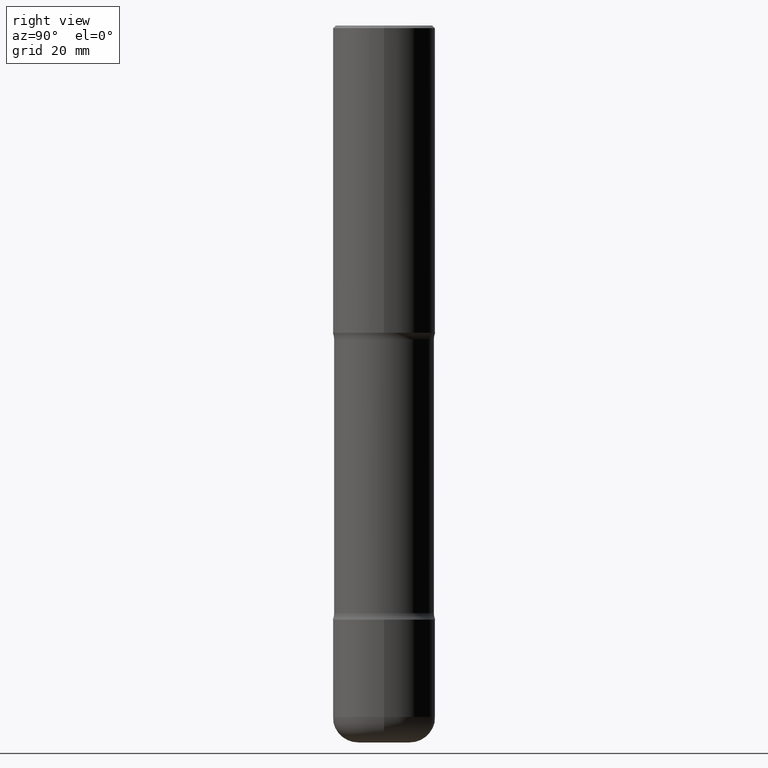
[diagram: clean part render]
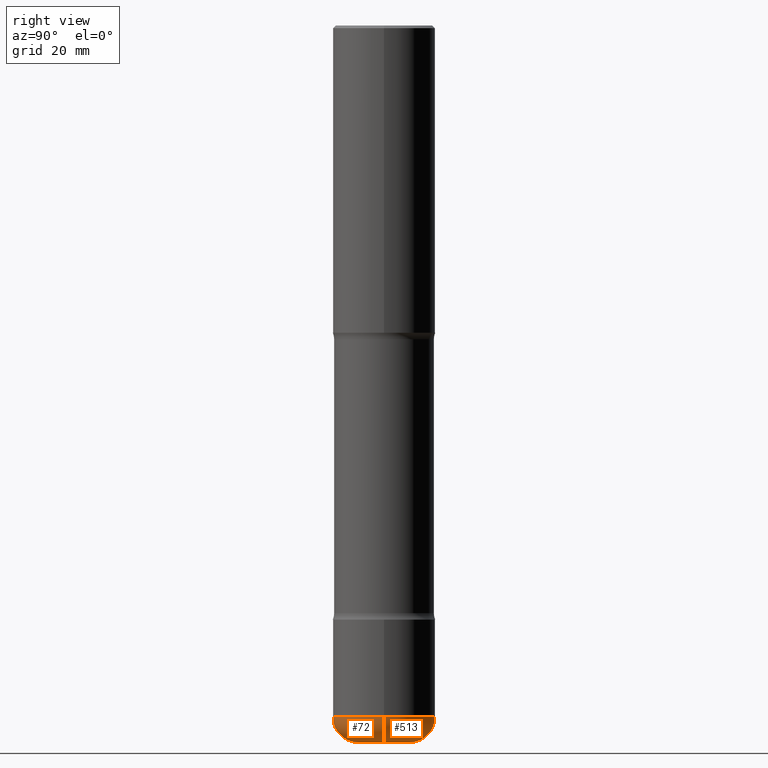
[diagram: same view with one multi-face feature highlighted, each face labeled with its STEP entity id]
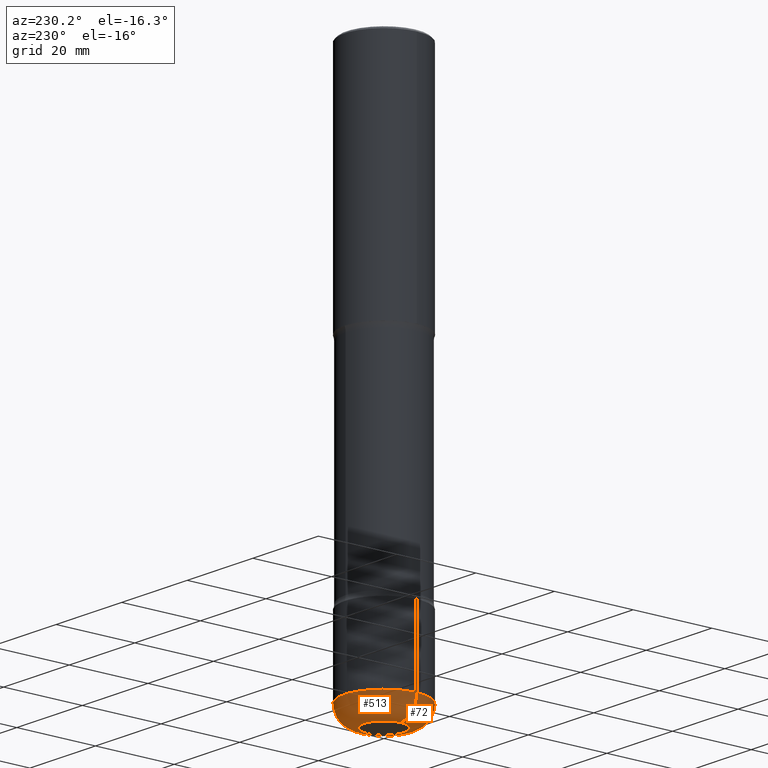
[diagram: same view with one multi-face feature highlighted, each face labeled with its STEP entity id]
A machine part, right view. The highlighted faces form ONE feature: a constant-radius fillet chain: 2 tangent blend faces with common blend radius 5.0013 mm. The faces share edges in the B-rep.
A second angle (auxiliary view) of the same feature is appended — it is thin or edge-on in the first view.
Their STEP definitions:
[1] entity #513 (Torus):
#1 = DIRECTION ( 'NONE',  ( 1.000000000000000000, -6.982962677686264344E-15, 4.883557194083112340E-29 ) ) ;
#3 = AXIS2_PLACEMENT_3D ( 'NONE', #47, #395, #1 ) ;
#14 = CARTESIAN_POINT ( 'NONE',  ( 0.1968000000000005578, -1.993112122278608958E-14, -5.314899999999998847 ) ) ;
#47 = CARTESIAN_POINT ( 'NONE',  ( 1.299742215799337779E-28, -1.855687416781742833E-14, -5.314899999999998847 ) ) ;
#92 = CIRCLE ( 'NONE', #272, 0.1968000000000005856 ) ;
#108 = DIRECTION ( 'NONE',  ( 1.000000000000000000, -6.982962677686266711E-15, 0.000000000000000000 ) ) ;
#117 = DIRECTION ( 'NONE',  ( -2.445468806185136597E-29, 3.491481338843145583E-15, 1.000000000000000000 ) ) ;
#128 = DIRECTION ( 'NONE',  ( 7.105427357601001859E-15, 1.000000000000000000, -3.491481338843145583E-15 ) ) ;
#147 = AXIS2_PLACEMENT_3D ( 'NONE', #14, #282, #532 ) ;
#157 = AXIS2_PLACEMENT_3D ( 'NONE', #490, #117, #108 ) ;
#160 = ORIENTED_EDGE ( 'NONE', *, *, #384, .T. ) ;
#172 = DIRECTION ( 'NONE',  ( -1.000000000000000000, 7.105427357601005014E-15, 0.000000000000000000 ) ) ;
#178 = VERTEX_POINT ( 'NONE', #234 ) ;
#204 = ORIENTED_EDGE ( 'NONE', *, *, #332, .F. ) ;
#206 = CIRCLE ( 'NONE', #147, 0.1969000000000002137 ) ;
#234 = CARTESIAN_POINT ( 'NONE',  ( 0.1968000000000005856, -2.061859389840430688E-14, -5.511799999999999145 ) ) ;
#246 = VERTEX_POINT ( 'NONE', #424 ) ;
#253 = EDGE_CURVE ( 'NONE', #178, #535, #206, .T. ) ;
#260 = TOROIDAL_SURFACE ( 'NONE', #3, 0.1968000000000005578, 0.1969000000000001860 ) ;
#263 = CIRCLE ( 'NONE', #359, 0.1969000000000002137 ) ;
#272 = AXIS2_PLACEMENT_3D ( 'NONE', #550, #388, #308 ) ;
#282 = DIRECTION ( 'NONE',  ( -6.982962677686266711E-15, -1.000000000000000000, 3.491481338843145583E-15 ) ) ;
#303 = ORIENTED_EDGE ( 'NONE', *, *, #406, .T. ) ;
#308 = DIRECTION ( 'NONE',  ( 1.000000000000000000, -6.982962677686261189E-15, 0.000000000000000000 ) ) ;
#332 = EDGE_CURVE ( 'NONE', #535, #246, #460, .T. ) ;
#359 = AXIS2_PLACEMENT_3D ( 'NONE', #432, #128, #172 ) ;
#384 = EDGE_CURVE ( 'NONE', #418, #246, #263, .T. ) ;
#388 = DIRECTION ( 'NONE',  ( -2.445468806185136597E-29, 3.491481338843145583E-15, 1.000000000000000000 ) ) ;
#395 = DIRECTION ( 'NONE',  ( -2.445468806185136597E-29, 3.491481338843145583E-15, 1.000000000000000000 ) ) ;
#406 = EDGE_CURVE ( 'NONE', #178, #418, #92, .T. ) ;
#418 = VERTEX_POINT ( 'NONE', #440 ) ;
#424 = CARTESIAN_POINT ( 'NONE',  ( -0.3937000000000007160, -1.575946741712991118E-14, -5.314899999999998847 ) ) ;
#432 = CARTESIAN_POINT ( 'NONE',  ( -0.1968000000000005578, -1.715852606384155055E-14, -5.314899999999998847 ) ) ;
#440 = CARTESIAN_POINT ( 'NONE',  ( -0.1968000000000005856, -1.680273307829483794E-14, -5.511799999999999145 ) ) ;
#460 = CIRCLE ( 'NONE', #157, 0.3937000000000006605 ) ;
#479 = FACE_OUTER_BOUND ( 'NONE', #488, .T. ) ;
#488 = EDGE_LOOP ( 'NONE', ( #303, #160, #204, #544 ) ) ;
#490 = CARTESIAN_POINT ( 'NONE',  ( 1.299742215799337779E-28, -1.855687416781742833E-14, -5.314899999999998847 ) ) ;
#491 = CARTESIAN_POINT ( 'NONE',  ( 0.3937000000000007160, -2.130606657402251786E-14, -5.314899999999998847 ) ) ;
#513 = ADVANCED_FACE ( 'NONE', ( #479 ), #260, .T. ) ;
#532 = DIRECTION ( 'NONE',  ( 1.000000000000000000, -6.982962677686267499E-15, 0.000000000000000000 ) ) ;
#535 = VERTEX_POINT ( 'NONE', #491 ) ;
#544 = ORIENTED_EDGE ( 'NONE', *, *, #253, .F. ) ;
#550 = CARTESIAN_POINT ( 'NONE',  ( 1.347893496593123422E-28, -1.924434684343564562E-14, -5.511799999999999145 ) ) ;
[2] entity #72 (Torus):
#14 = CARTESIAN_POINT ( 'NONE',  ( 0.1968000000000005578, -1.993112122278608958E-14, -5.314899999999998847 ) ) ;
#18 = FACE_OUTER_BOUND ( 'NONE', #51, .T. ) ;
#22 = DIRECTION ( 'NONE',  ( 1.000000000000000000, -6.982962677686264344E-15, 4.883557194083112340E-29 ) ) ;
#28 = AXIS2_PLACEMENT_3D ( 'NONE', #520, #473, #560 ) ;
#29 = ORIENTED_EDGE ( 'NONE', *, *, #183, .T. ) ;
#51 = EDGE_LOOP ( 'NONE', ( #508, #29, #416, #247 ) ) ;
#72 = ADVANCED_FACE ( 'NONE', ( #18 ), #164, .T. ) ;
#115 = DIRECTION ( 'NONE',  ( -2.445468806185136597E-29, 3.491481338843145583E-15, 1.000000000000000000 ) ) ;
#119 = DIRECTION ( 'NONE',  ( -2.445468806185136597E-29, 3.491481338843145583E-15, 1.000000000000000000 ) ) ;
#128 = DIRECTION ( 'NONE',  ( 7.105427357601001859E-15, 1.000000000000000000, -3.491481338843145583E-15 ) ) ;
#147 = AXIS2_PLACEMENT_3D ( 'NONE', #14, #282, #532 ) ;
#164 = TOROIDAL_SURFACE ( 'NONE', #546, 0.1968000000000005578, 0.1969000000000001860 ) ;
#172 = DIRECTION ( 'NONE',  ( -1.000000000000000000, 7.105427357601005014E-15, 0.000000000000000000 ) ) ;
#178 = VERTEX_POINT ( 'NONE', #234 ) ;
#183 = EDGE_CURVE ( 'NONE', #418, #178, #442, .T. ) ;
#206 = CIRCLE ( 'NONE', #147, 0.1969000000000002137 ) ;
#209 = CARTESIAN_POINT ( 'NONE',  ( 1.347893496593123422E-28, -1.924434684343564562E-14, -5.511799999999999145 ) ) ;
#234 = CARTESIAN_POINT ( 'NONE',  ( 0.1968000000000005856, -2.061859389840430688E-14, -5.511799999999999145 ) ) ;
#235 = DIRECTION ( 'NONE',  ( 1.000000000000000000, -6.982962677686261189E-15, 0.000000000000000000 ) ) ;
#246 = VERTEX_POINT ( 'NONE', #424 ) ;
#247 = ORIENTED_EDGE ( 'NONE', *, *, #370, .F. ) ;
#253 = EDGE_CURVE ( 'NONE', #178, #535, #206, .T. ) ;
#263 = CIRCLE ( 'NONE', #359, 0.1969000000000002137 ) ;
#274 = CIRCLE ( 'NONE', #28, 0.3937000000000006605 ) ;
#282 = DIRECTION ( 'NONE',  ( -6.982962677686266711E-15, -1.000000000000000000, 3.491481338843145583E-15 ) ) ;
#306 = AXIS2_PLACEMENT_3D ( 'NONE', #209, #119, #235 ) ;
#359 = AXIS2_PLACEMENT_3D ( 'NONE', #432, #128, #172 ) ;
#370 = EDGE_CURVE ( 'NONE', #246, #535, #274, .T. ) ;
#384 = EDGE_CURVE ( 'NONE', #418, #246, #263, .T. ) ;
#415 = CARTESIAN_POINT ( 'NONE',  ( 1.299742215799337779E-28, -1.855687416781742833E-14, -5.314899999999998847 ) ) ;
#416 = ORIENTED_EDGE ( 'NONE', *, *, #253, .T. ) ;
#418 = VERTEX_POINT ( 'NONE', #440 ) ;
#424 = CARTESIAN_POINT ( 'NONE',  ( -0.3937000000000007160, -1.575946741712991118E-14, -5.314899999999998847 ) ) ;
#432 = CARTESIAN_POINT ( 'NONE',  ( -0.1968000000000005578, -1.715852606384155055E-14, -5.314899999999998847 ) ) ;
#440 = CARTESIAN_POINT ( 'NONE',  ( -0.1968000000000005856, -1.680273307829483794E-14, -5.511799999999999145 ) ) ;
#442 = CIRCLE ( 'NONE', #306, 0.1968000000000005856 ) ;
#473 = DIRECTION ( 'NONE',  ( -2.445468806185136597E-29, 3.491481338843145583E-15, 1.000000000000000000 ) ) ;
#491 = CARTESIAN_POINT ( 'NONE',  ( 0.3937000000000007160, -2.130606657402251786E-14, -5.314899999999998847 ) ) ;
#508 = ORIENTED_EDGE ( 'NONE', *, *, #384, .F. ) ;
#520 = CARTESIAN_POINT ( 'NONE',  ( 1.299742215799337779E-28, -1.855687416781742833E-14, -5.314899999999998847 ) ) ;
#532 = DIRECTION ( 'NONE',  ( 1.000000000000000000, -6.982962677686267499E-15, 0.000000000000000000 ) ) ;
#535 = VERTEX_POINT ( 'NONE', #491 ) ;
#546 = AXIS2_PLACEMENT_3D ( 'NONE', #415, #115, #22 ) ;
#560 = DIRECTION ( 'NONE',  ( 1.000000000000000000, -6.982962677686266711E-15, 0.000000000000000000 ) ) ;